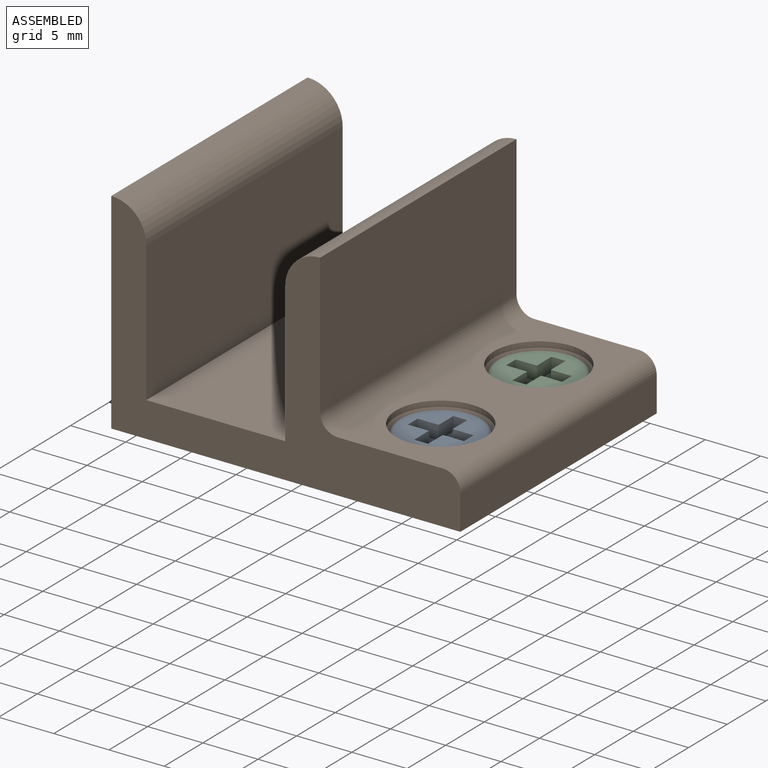
[diagram: assembled view]
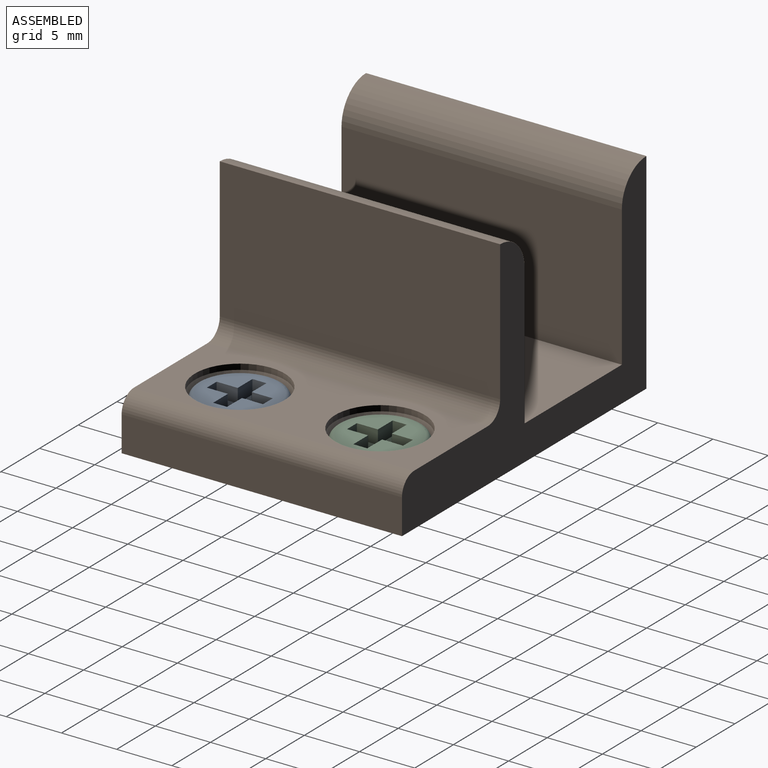
[diagram: assembled view, second angle]
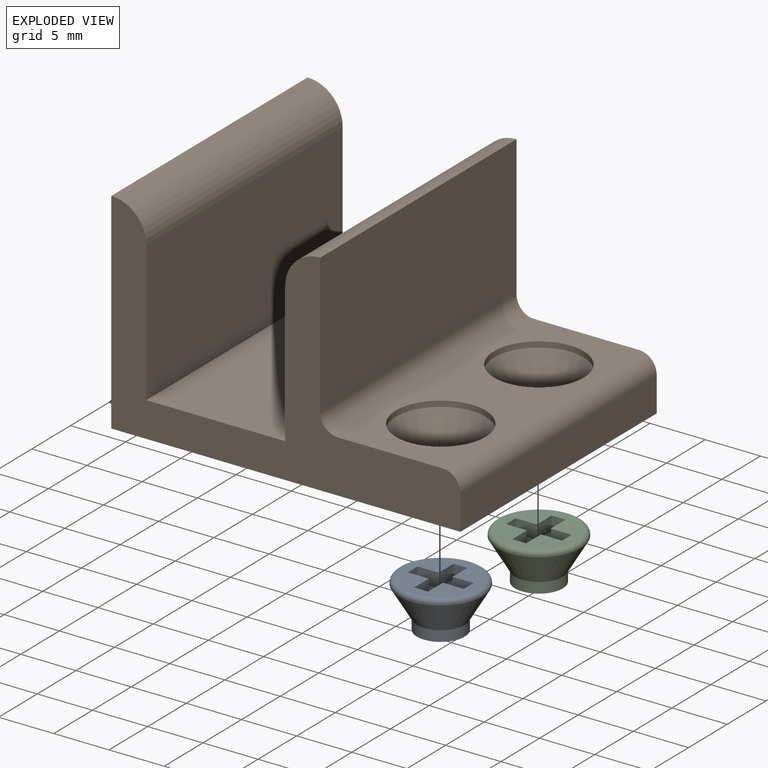
[diagram: exploded view]
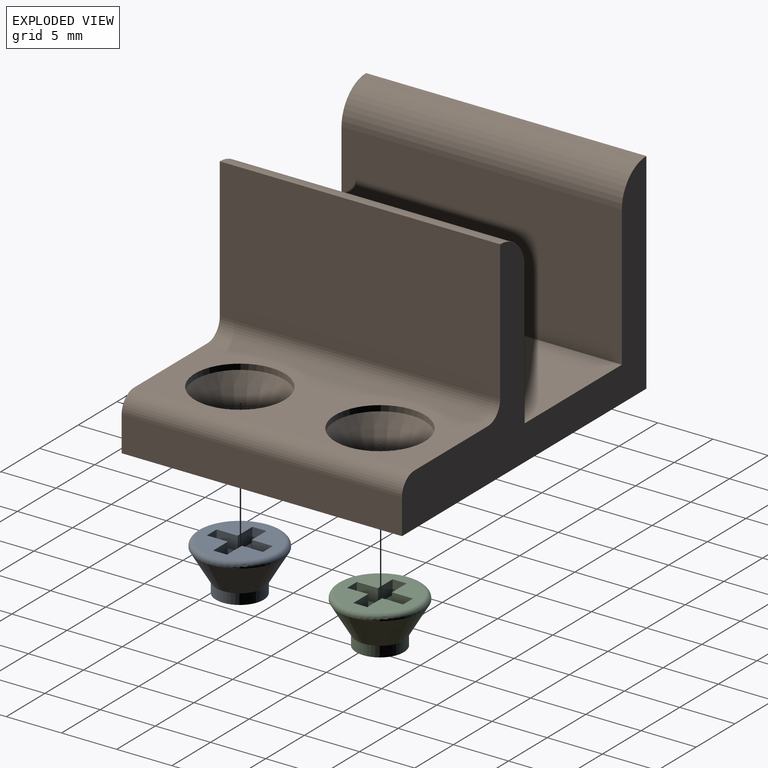
[diagram: exploded view, second angle]
ASSEMBLY  parts=3 mates=2
PART A: 19 faces, bbox 8.2x8.2x4.3 mm
  f0: plane 6.83x6.83mm, normal (0,0,1), area 25.3mm2, adj f5,f6,f7,f8,f9,f10,f11,f12
  f1: plane 4.32x4.32mm, normal (0,0,-1), area 14.6mm2, adj f2
  f2: cylinder r=2.16mm len=4.32mm, axis (0,0,-1), area 12.9mm2, adj f1,f3
  f3: cone r=3.81mm half-angle=30.6deg, axis (0,0,1), area 60.9mm2, adj f2,f4
  f4: cylinder r=3.81mm len=7.62mm, axis (0,0,-1), area 2.7mm2, adj f3,f18
  f5: plane 1.91x1.27mm, normal (1,0,0), area 2.4mm2, adj f0,f6,f16,f17
  f6: plane 1.91x1.27mm, normal (0,-1,0), area 2.4mm2, adj f0,f5,f7,f17
  f7: plane 1.27x1.27mm, normal (1,0,0), area 1.6mm2, adj f0,f6,f8,f17
  f8: plane 1.91x1.27mm, normal (0,1,0), area 2.4mm2, adj f0,f7,f9,f17
  f9: plane 1.91x1.27mm, normal (1,0,0), area 2.4mm2, adj f0,f8,f10,f17
  f10: plane 1.27x1.27mm, normal (0,1,0), area 1.6mm2, adj f0,f9,f11,f17
  f11: plane 1.91x1.27mm, normal (-1,0,0), area 2.4mm2, adj f0,f10,f12,f17
  f12: plane 1.91x1.27mm, normal (0,1,0), area 2.4mm2, adj f0,f11,f13,f17
  f13: plane 1.27x1.27mm, normal (-1,0,0), area 1.6mm2, adj f0,f12,f14,f17
  f14: plane 1.91x1.27mm, normal (0,-1,0), area 2.4mm2, adj f0,f13,f15,f17
  f15: plane 1.91x1.27mm, normal (-1,0,0), area 2.4mm2, adj f0,f14,f16,f17
  f16: plane 1.27x1.27mm, normal (0,-1,0), area 1.6mm2, adj f0,f5,f15,f17
  f17: plane 5.08x5.08mm, normal (0,0,1), area 11.3mm2, adj f5,f6,f7,f8,f9,f10,f11,f12
  f18: torus R=3.41mm, axis (0,0,-1), area 14.4mm2, adj f0,f4
PART B: 20 faces, bbox 31.6x25.4x19.1 mm
  f0: cylinder r=2.29mm len=4.57mm, axis (0,0,1), area 13.7mm2, adj f1,f3
  f1: cone r=4.06mm half-angle=28.3deg, axis (0,0,1), area 74.8mm2, adj f0,f2
  f2: cylinder r=4.06mm len=8.13mm, axis (0,0,1), area 13mm2, adj f1,f6
  f3: plane 31.62x25.4mm, normal (0,0,-1), area 770.4mm2, adj f0,f4,f14,f15,f16,f17
  f4: plane 25.4x3.18mm, normal (1,0,0), area 80.6mm2, adj f3,f5,f15,f16
  f5: cylinder r=1.59mm len=25.4mm, axis (0,1,0), area 63.3mm2, adj f4,f6,f15,f16
  f6: plane 25.4x9.53mm, normal (0,0,1), area 138.2mm2, adj f2,f5,f7,f15,f16,f19
  f7: cylinder r=1.59mm len=25.4mm, axis (0,1,0), area 63.3mm2, adj f6,f8,f15,f16
  f8: plane 25.4x12.7mm, normal (1,0,0), area 322.6mm2, adj f7,f9,f15,f16
  f9: cylinder r=3.17mm len=25.4mm, axis (0,1,0), area 126.7mm2, adj f8,f10,f15,f16
  f10: plane 25.4x12.7mm, normal (-1,0,0), area 322.6mm2, adj f9,f11,f15,f16
  f11: plane 25.4x12.57mm, normal (0,0,1), area 319.4mm2, adj f10,f12,f15,f16
  f12: plane 25.4x12.7mm, normal (1,0,0), area 322.6mm2, adj f11,f13,f15,f16
  f13: cylinder r=3.17mm len=25.4mm, axis (0,1,0), area 126.7mm2, adj f12,f14,f15,f16
  f14: plane 25.4x19.05mm, normal (-1,0,0), area 483.9mm2, adj f3,f13,f15,f16
  f15: plane 31.62x19.05mm, normal (0,-1,0), area 217mm2, adj f3,f4,f5,f6,f7,f8,f9,f10
  f16: plane 31.62x19.05mm, normal (0,1,0), area 217mm2, adj f3,f4,f5,f6,f7,f8,f9,f10
  f17: cylinder r=2.29mm len=4.57mm, axis (0,0,1), area 13.7mm2, adj f3,f18
  f18: cone r=4.06mm half-angle=28.3deg, axis (0,0,1), area 74.8mm2, adj f17,f19
  f19: cylinder r=4.06mm len=8.13mm, axis (0,0,1), area 13mm2, adj f6,f18
PART C: same geometry as A
PLACE A t=(10,-6.35,0)mm
PLACE B t=(-5.94,-6.35,0)mm
PLACE C t=(10,6.35,0)mm
MATE fastened B.f0 <-> C.f2  axis (0,0,-1) through (10,6.35,0)mm
MATE fastened A.f2 <-> B.f17  axis (0,0,-1) through (10,-6.35,0)mm
